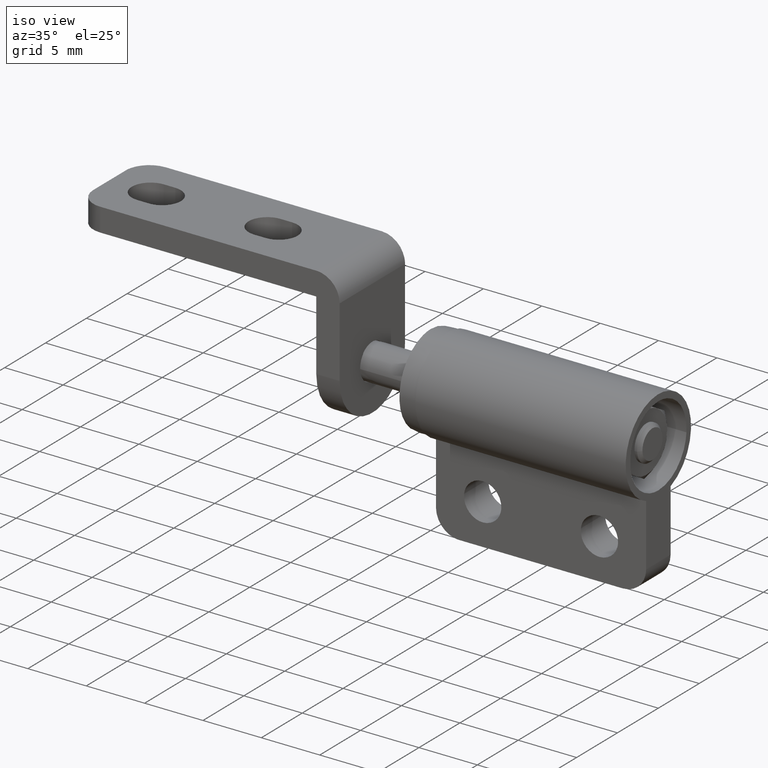
[diagram: clean part render]
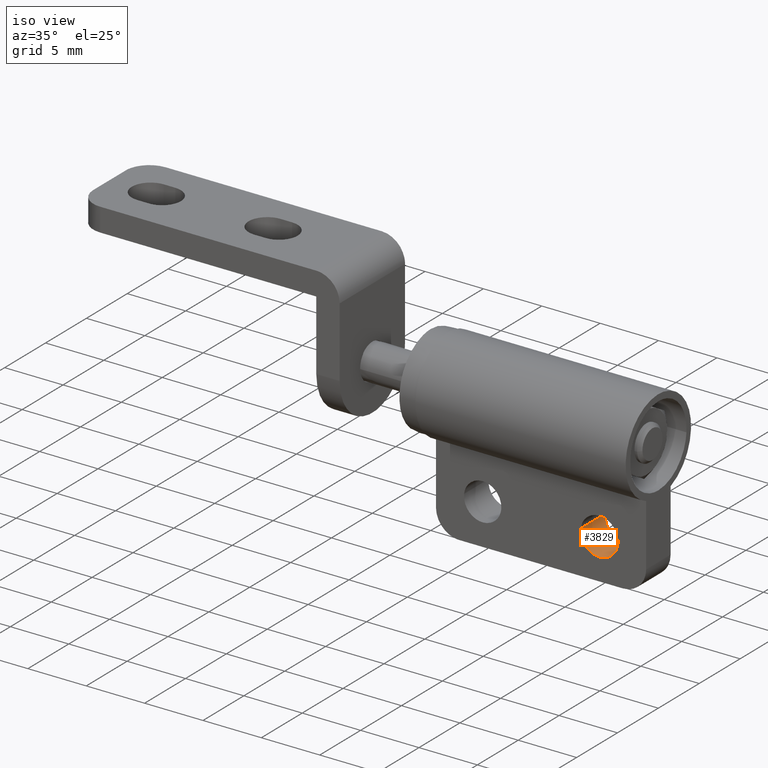
[diagram: same view with one face highlighted and labeled with its STEP entity id]
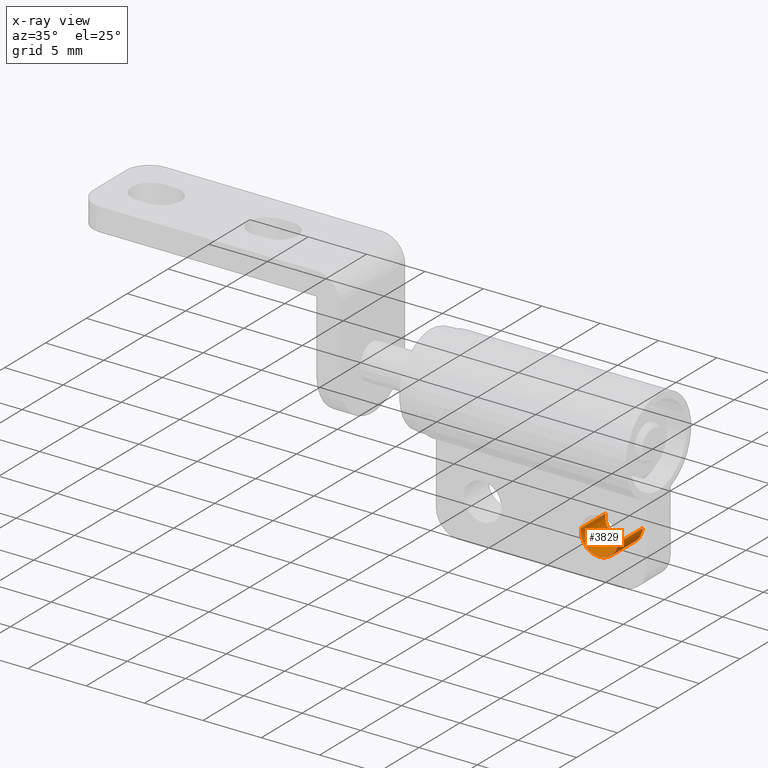
[diagram: x-ray of the same camera — body ghosted, the highlighted face saturated]
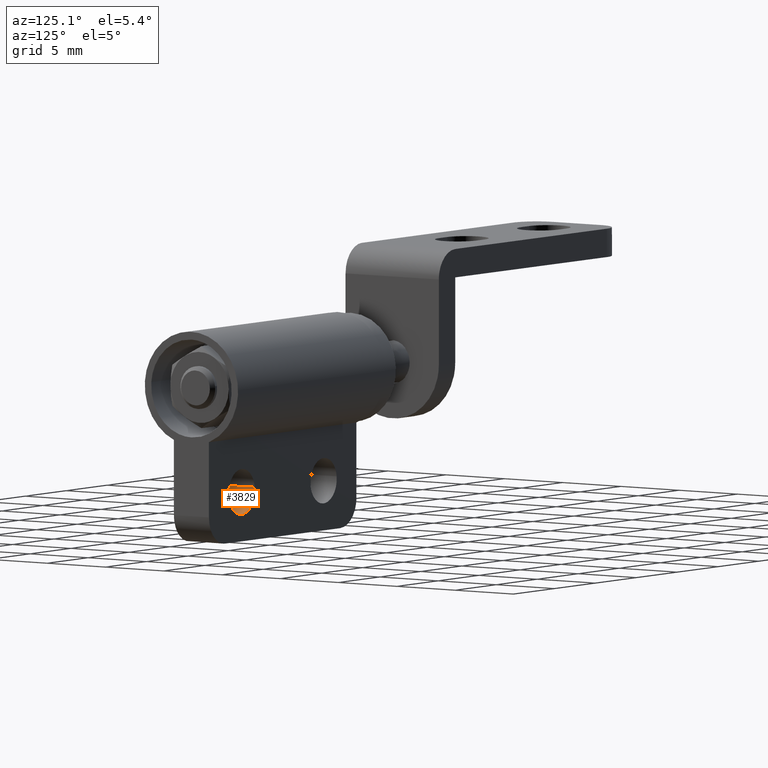
[diagram: same view with one face highlighted and labeled with its STEP entity id]
A machine part, iso view. The second image highlights one B-rep face of the part: STEP entity #3829.
The next image is the same camera in x-ray: the body ghosted, the highlighted face saturated — about 0% of this face is hidden behind the body in this view.
A second angle (auxiliary view) of the same face is appended — the face is thin or edge-on in the first view.
In plain terms, the highlighted face is a freeform B-spline surface patch.
Its self-contained STEP definition (entity closure, byte-faithful):
#3727=CARTESIAN_POINT('',(18.911184757818141,1.574999999999944,-7.311145224549187));
#3728=CARTESIAN_POINT('',(18.905779815282237,1.574999999999944,-7.356616434179236));
#3729=CARTESIAN_POINT('',(18.902984322525018,1.574999999999944,-7.402322336744229));
#3730=CARTESIAN_POINT('',(18.805306659269252,1.574999999999943,-8.999338014219218));
#3731=CARTESIAN_POINT('',(20.402322336744231,1.574999999999944,-9.097015677474987));
#3732=CARTESIAN_POINT('',(21.999338014219223,1.574999999999943,-9.194693340730760));
#3733=CARTESIAN_POINT('',(22.097015677474989,1.574999999999944,-7.597677663255771));
#3734=CARTESIAN_POINT('',(18.911184757818141,-1.576874999999943,-7.311145224549187));
#3735=CARTESIAN_POINT('',(18.905779815282237,-1.576874999999944,-7.356616434179236));
#3736=CARTESIAN_POINT('',(18.902984322525018,-1.576874999999943,-7.402322336744229));
#3737=CARTESIAN_POINT('',(18.805306659269252,-1.576874999999943,-8.999338014219218));
#3738=CARTESIAN_POINT('',(20.402322336744231,-1.576874999999943,-9.097015677474987));
#3739=CARTESIAN_POINT('',(21.999338014219223,-1.576874999999943,-9.194693340730760));
#3740=CARTESIAN_POINT('',(22.097015677474989,-1.576874999999943,-7.597677663255771));
#3748=(BOUNDED_SURFACE()B_SPLINE_SURFACE(2,1,((#3727,#3734),(#3728,#3735),(#3729,#3736),(#3730,#3737),(#3731,#3738),(#3732,#3739),(#3733,#3740)),.UNSPECIFIED.,.F.,.F.,.U.)B_SPLINE_SURFACE_WITH_KNOTS((3,2,2,3),(2,2),(3.078760800517997,3.141592653589793,4.712388980384690,6.283185307179586),(0.0,3.151874999999887),.UNSPECIFIED.)GEOMETRIC_REPRESENTATION_ITEM()RATIONAL_B_SPLINE_SURFACE(((0.977505800795127,0.977505800795127),(0.988284271247462,0.988284271247462),(1.0,1.0),(0.707106781186548,0.707106781186548),(1.0,1.0),(0.707106781186548,0.707106781186548),(1.0,1.0)))REPRESENTATION_ITEM('')SURFACE());
#3749=CARTESIAN_POINT('',(18.911184757819289,1.499999999999946,-7.311145224539449));
#3750=VERTEX_POINT('',#3749);
#3751=CARTESIAN_POINT('',(20.500000000000000,1.499999999999946,-9.100000000000000));
#3752=VERTEX_POINT('',#3751);
#3753=CARTESIAN_POINT('',(18.911184757819289,1.499999999999946,-7.311145224539449));
#3754=CARTESIAN_POINT('',(18.899999999999999,1.499999999999946,-7.405241408547104));
#3755=CARTESIAN_POINT('',(18.899999999999999,1.499999999999946,-7.500000000000000));
#3756=CARTESIAN_POINT('',(18.900000000000002,1.499999999999946,-9.100000000000000));
#3757=CARTESIAN_POINT('',(20.500000000000000,1.499999999999946,-9.100000000000000));
#3765=(BOUNDED_CURVE()B_SPLINE_CURVE(2,(#3753,#3754,#3755,#3756,#3757),.UNSPECIFIED.,.F.,.U.)B_SPLINE_CURVE_WITH_KNOTS((3,2,3),(0.229562473513573,0.250000000000000,0.500000000000000),.UNSPECIFIED.)CURVE()GEOMETRIC_REPRESENTATION_ITEM()RATIONAL_B_SPLINE_CURVE((0.956026754183826,0.976055948331221,1.0,0.707106781186548,1.0))REPRESENTATION_ITEM(''));
#3766=EDGE_CURVE('',#3750,#3752,#3765,.T.);
#3767=ORIENTED_EDGE('',*,*,#3766,.F.);
#3768=CARTESIAN_POINT('',(18.911184757819289,-1.499999999999946,-7.311145224539450));
#3769=VERTEX_POINT('',#3768);
#3770=CARTESIAN_POINT('',(18.911184757819289,1.499999999999946,-7.311145224539449));
#3771=CARTESIAN_POINT('',(18.911184757819289,-1.499999999999946,-7.311145224539450));
#3772=QUASI_UNIFORM_CURVE('',1,(#3770,#3771),.UNSPECIFIED.,.F.,.U.);
#3773=EDGE_CURVE('',#3750,#3769,#3772,.T.);
#3774=ORIENTED_EDGE('',*,*,#3773,.T.);
#3775=CARTESIAN_POINT('',(20.500000000000000,-1.499999999999946,-9.100000000000000));
#3776=VERTEX_POINT('',#3775);
#3777=CARTESIAN_POINT('',(18.911184757819296,-1.499999999999946,-7.311145224539450));
#3778=CARTESIAN_POINT('',(18.899999999999999,-1.499999999999946,-7.405241408547104));
#3779=CARTESIAN_POINT('',(18.899999999999999,-1.499999999999946,-7.500000000000000));
#3780=CARTESIAN_POINT('',(18.900000000000002,-1.499999999999946,-9.100000000000000));
#3781=CARTESIAN_POINT('',(20.500000000000000,-1.499999999999946,-9.100000000000000));
#3789=(BOUNDED_CURVE()B_SPLINE_CURVE(2,(#3777,#3778,#3779,#3780,#3781),.UNSPECIFIED.,.F.,.U.)B_SPLINE_CURVE_WITH_KNOTS((3,2,3),(0.229562473513573,0.250000000000000,0.500000000000000),.UNSPECIFIED.)CURVE()GEOMETRIC_REPRESENTATION_ITEM()RATIONAL_B_SPLINE_CURVE((0.956026754183826,0.976055948331221,1.0,0.707106781186548,1.0))REPRESENTATION_ITEM(''));
#3790=EDGE_CURVE('',#3769,#3776,#3789,.T.);
#3791=ORIENTED_EDGE('',*,*,#3790,.T.);
#3792=CARTESIAN_POINT('',(22.097015677473841,-1.499999999999946,-7.597677663274498));
#3793=VERTEX_POINT('',#3792);
#3794=CARTESIAN_POINT('',(20.500000000000000,-1.499999999999946,-9.100000000000000));
#3795=CARTESIAN_POINT('',(22.005129707013744,-1.499999999999947,-9.100000000000000));
#3796=CARTESIAN_POINT('',(22.097015677473845,-1.499999999999946,-7.597677663274498));
#3804=(BOUNDED_CURVE()B_SPLINE_CURVE(2,(#3794,#3795,#3796),.UNSPECIFIED.,.F.,.U.)B_SPLINE_CURVE_WITH_KNOTS((3,3),(0.500000000000000,0.739332962237921),.UNSPECIFIED.)CURVE()GEOMETRIC_REPRESENTATION_ITEM()RATIONAL_B_SPLINE_CURVE((1.0,0.719603993287907,0.976072041664529))REPRESENTATION_ITEM(''));
#3805=EDGE_CURVE('',#3776,#3793,#3804,.T.);
#3806=ORIENTED_EDGE('',*,*,#3805,.T.);
#3807=CARTESIAN_POINT('',(22.097015677473841,1.499999999999946,-7.597677663274498));
#3808=VERTEX_POINT('',#3807);
#3809=CARTESIAN_POINT('',(22.097015677473841,1.499999999999946,-7.597677663274498));
#3810=CARTESIAN_POINT('',(22.097015677473841,-1.499999999999946,-7.597677663274498));
#3811=QUASI_UNIFORM_CURVE('',1,(#3809,#3810),.UNSPECIFIED.,.F.,.U.);
#3812=EDGE_CURVE('',#3808,#3793,#3811,.T.);
#3813=ORIENTED_EDGE('',*,*,#3812,.F.);
#3814=CARTESIAN_POINT('',(20.500000000000000,1.499999999999946,-9.100000000000000));
#3815=CARTESIAN_POINT('',(22.005129707013744,1.499999999999947,-9.100000000000000));
#3816=CARTESIAN_POINT('',(22.097015677473845,1.499999999999946,-7.597677663274498));
#3824=(BOUNDED_CURVE()B_SPLINE_CURVE(2,(#3814,#3815,#3816),.UNSPECIFIED.,.F.,.U.)B_SPLINE_CURVE_WITH_KNOTS((3,3),(0.500000000000000,0.739332962237921),.UNSPECIFIED.)CURVE()GEOMETRIC_REPRESENTATION_ITEM()RATIONAL_B_SPLINE_CURVE((1.0,0.719603993287907,0.976072041664529))REPRESENTATION_ITEM(''));
#3825=EDGE_CURVE('',#3752,#3808,#3824,.T.);
#3826=ORIENTED_EDGE('',*,*,#3825,.F.);
#3827=EDGE_LOOP('',(#3767,#3774,#3791,#3806,#3813,#3826));
#3828=FACE_OUTER_BOUND('',#3827,.T.);
#3829=ADVANCED_FACE('',(#3828),#3748,.F.);